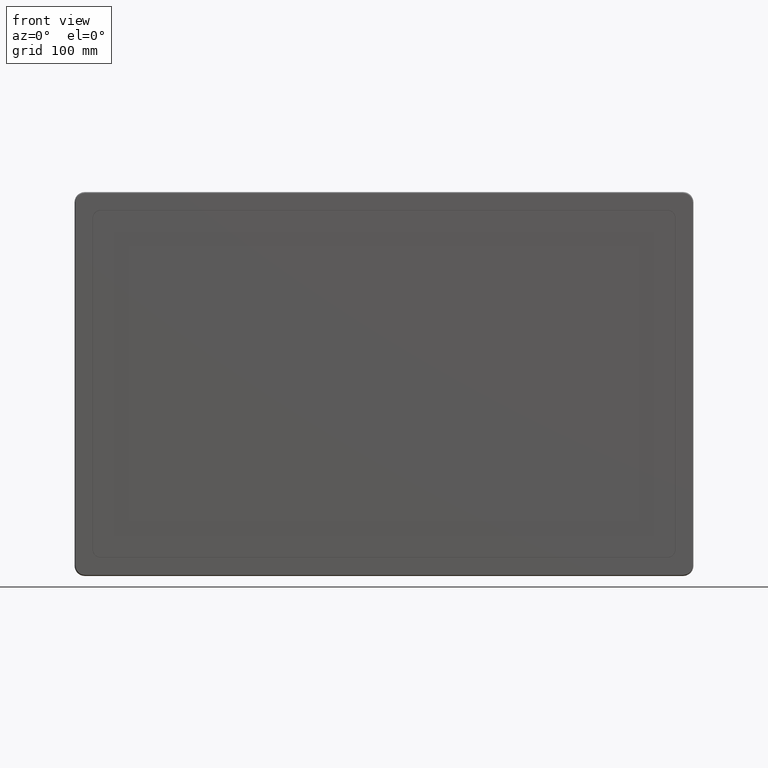
[diagram: clean part render]
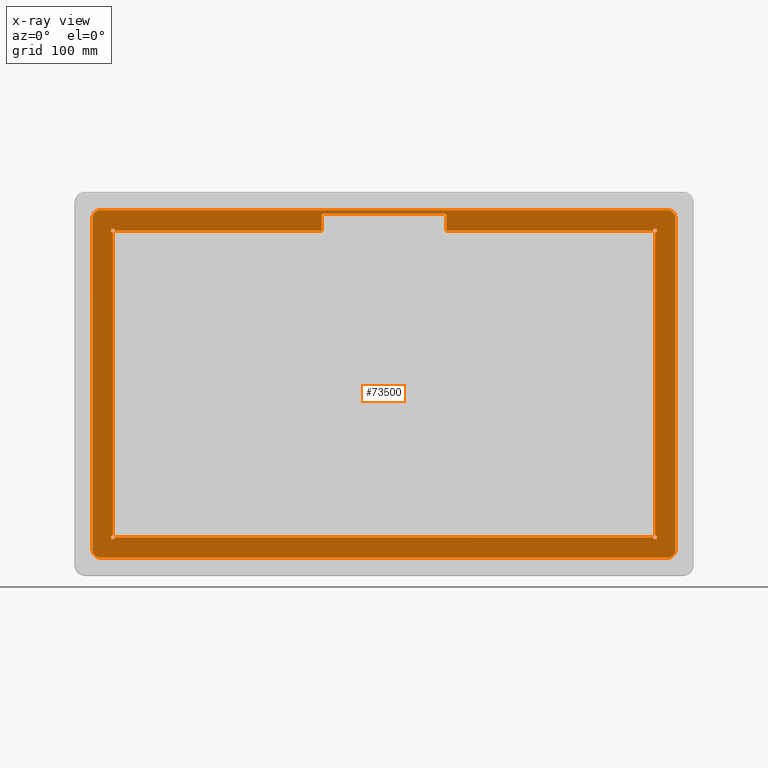
[diagram: x-ray — body ghosted, one internal face saturated and labeled with its STEP entity id]
A machine part, front view, then the same camera in x-ray: the body is ghosted and one INTERNAL B-rep face — a face not visible from any outside direction — is saturated and labeled: STEP entity #73500.
In plain terms, the highlighted planar face has unit normal (0, -1, 0).
Its self-contained STEP definition (entity closure, byte-faithful):
#288 = EDGE_CURVE ( 'NONE', #32959, #58912, #45521, .T. ) ;
#515 = EDGE_CURVE ( 'NONE', #94635, #58185, #73271, .T. ) ;
#707 = CARTESIAN_POINT ( 'NONE',  ( 265.5000000000000568, -2.699999999999994849, -148.2500000000000568 ) ) ;
#1057 = DIRECTION ( 'NONE',  ( -1.000000000000000000, -0.0000000000000000000, -0.0000000000000000000 ) ) ;
#1129 = CARTESIAN_POINT ( 'NONE',  ( -59.00000000000000711, -2.699999999999994849, 166.6599999999999966 ) ) ;
#1281 = VERTEX_POINT ( 'NONE', #71381 ) ;
#2225 = EDGE_CURVE ( 'NONE', #2975, #69309, #80713, .T. ) ;
#2670 = AXIS2_PLACEMENT_3D ( 'NONE', #45728, #3347, #45358 ) ;
#2890 = CARTESIAN_POINT ( 'NONE',  ( 59.00000000000000000, -2.699999749999995036, 166.6600000000000250 ) ) ;
#2975 = VERTEX_POINT ( 'NONE', #90352 ) ;
#3347 = DIRECTION ( 'NONE',  ( 0.0000000000000000000, 1.000000000000000000, -0.0000000000000000000 ) ) ;
#3729 = AXIS2_PLACEMENT_3D ( 'NONE', #79172, #36773, #80245 ) ;
#4504 = PLANE ( 'NONE',  #100039 ) ;
#4945 = DIRECTION ( 'NONE',  ( 3.701697761654537327E-16, -1.000000000000000000, 3.701697761653726279E-16 ) ) ;
#6131 = DIRECTION ( 'NONE',  ( -0.0000000000000000000, -0.0000000000000000000, -1.000000000000000000 ) ) ;
#6664 = VERTEX_POINT ( 'NONE', #31451 ) ;
#6883 = CARTESIAN_POINT ( 'NONE',  ( -61.00000000000000000, -2.699999999999989964, 157.4550000000000125 ) ) ;
#7400 = EDGE_CURVE ( 'NONE', #54453, #6664, #73149, .T. ) ;
#7967 = EDGE_LOOP ( 'NONE', ( #27441, #93674, #8310, #22999, #15719, #8295, #109742, #56193, #92641, #44053, #78701, #61857, #76281, #45853, #30344, #17116 ) ) ;
#8135 = VERTEX_POINT ( 'NONE', #12870 ) ;
#8295 = ORIENTED_EDGE ( 'NONE', *, *, #19496, .T. ) ;
#8310 = ORIENTED_EDGE ( 'NONE', *, *, #61328, .T. ) ;
#8746 = EDGE_CURVE ( 'NONE', #17832, #88655, #88464, .T. ) ;
#9737 = EDGE_LOOP ( 'NONE', ( #22340, #56405, #38667, #74535, #53719, #25241, #15048, #100267 ) ) ;
#10080 = CARTESIAN_POINT ( 'NONE',  ( 59.00000000000000000, -2.699999749999995036, 166.6600000000000250 ) ) ;
#10254 = LINE ( 'NONE', #40392, #97915 ) ;
#11601 = CARTESIAN_POINT ( 'NONE',  ( -285.3999999999999773, -2.700000000000000178, -170.1500000000000057 ) ) ;
#11855 = DIRECTION ( 'NONE',  ( -0.0000000000000000000, -0.0000000000000000000, -1.000000000000000000 ) ) ;
#12419 = AXIS2_PLACEMENT_3D ( 'NONE', #65931, #107079, #65566 ) ;
#12463 = DIRECTION ( 'NONE',  ( 1.000000000000000000, 1.156482317317870246E-16, 0.0000000000000000000 ) ) ;
#12870 = CARTESIAN_POINT ( 'NONE',  ( 265.5000000000000568, -2.699999999999994849, 148.2500000000000568 ) ) ;
#13949 = EDGE_CURVE ( 'NONE', #6664, #27503, #29195, .T. ) ;
#14479 = EDGE_CURVE ( 'NONE', #76124, #29682, #88760, .T. ) ;
#14632 = VERTEX_POINT ( 'NONE', #90220 ) ;
#15048 = ORIENTED_EDGE ( 'NONE', *, *, #515, .T. ) ;
#15229 = CIRCLE ( 'NONE', #3729, 1.999999999999918510 ) ;
#15719 = ORIENTED_EDGE ( 'NONE', *, *, #106064, .T. ) ;
#16199 = CARTESIAN_POINT ( 'NONE',  ( -285.3999999999999773, -2.700000000000000178, 162.6499999999999773 ) ) ;
#17116 = ORIENTED_EDGE ( 'NONE', *, *, #61712, .F. ) ;
#17832 = VERTEX_POINT ( 'NONE', #103031 ) ;
#18695 = DIRECTION ( 'NONE',  ( 1.000000000000000000, 0.0000000000000000000, 0.0000000000000000000 ) ) ;
#19367 = DIRECTION ( 'NONE',  ( 0.0000000000000000000, 0.0000000000000000000, 1.000000000000000000 ) ) ;
#19496 = EDGE_CURVE ( 'NONE', #8135, #100457, #67042, .T. ) ;
#20666 = CARTESIAN_POINT ( 'NONE',  ( -277.8999999999999773, -2.700000000000001066, 162.6499999999999204 ) ) ;
#21443 = CARTESIAN_POINT ( 'NONE',  ( 265.4999999999998863, -2.700000000000000178, 150.2500000000000000 ) ) ;
#22340 = ORIENTED_EDGE ( 'NONE', *, *, #288, .T. ) ;
#22710 = VECTOR ( 'NONE', #98688, 1000.000000000000000 ) ;
#22916 = VECTOR ( 'NONE', #11855, 1000.000000000000000 ) ;
#22999 = ORIENTED_EDGE ( 'NONE', *, *, #8746, .T. ) ;
#23005 = AXIS2_PLACEMENT_3D ( 'NONE', #96816, #79459, #28910 ) ;
#23259 = CARTESIAN_POINT ( 'NONE',  ( 61.00000000000005684, -2.699999999999995293, 150.2499999999999147 ) ) ;
#24751 = CARTESIAN_POINT ( 'NONE',  ( -263.4999997500000291, -2.699999999999994849, 150.2499999999998863 ) ) ;
#24831 = VECTOR ( 'NONE', #78493, 1000.000000000000000 ) ;
#25241 = ORIENTED_EDGE ( 'NONE', *, *, #78426, .T. ) ;
#25824 = CIRCLE ( 'NONE', #64333, 7.500000000000007105 ) ;
#26121 = CARTESIAN_POINT ( 'NONE',  ( 0.0000000000000000000, -2.700000000000000178, 150.2499999999998010 ) ) ;
#26378 = CARTESIAN_POINT ( 'NONE',  ( -61.00000000000000000, -2.699999999999989964, 150.2500000000000000 ) ) ;
#26746 = CARTESIAN_POINT ( 'NONE',  ( -263.4999997500000291, -2.699999999999994849, 150.2499999999998863 ) ) ;
#26768 = CARTESIAN_POINT ( 'NONE',  ( -285.3999999999999773, -2.700000000000000178, -162.6499999999999488 ) ) ;
#27155 = VERTEX_POINT ( 'NONE', #92189 ) ;
#27441 = ORIENTED_EDGE ( 'NONE', *, *, #13949, .F. ) ;
#27503 = VERTEX_POINT ( 'NONE', #10080 ) ;
#28910 = DIRECTION ( 'NONE',  ( 1.000000000000000000, -1.156482317317870246E-16, 0.0000000000000000000 ) ) ;
#29195 = CIRCLE ( 'NONE', #67527, 2.000000000000022649 ) ;
#29682 = VERTEX_POINT ( 'NONE', #45179 ) ;
#30012 = DIRECTION ( 'NONE',  ( 0.0000000000000000000, 0.0000000000000000000, 1.000000000000000000 ) ) ;
#30134 = CARTESIAN_POINT ( 'NONE',  ( -277.8999999999999773, -2.700000000000000178, -170.1500000000000057 ) ) ;
#30344 = ORIENTED_EDGE ( 'NONE', *, *, #14479, .F. ) ;
#31451 = CARTESIAN_POINT ( 'NONE',  ( 61.00000000000000000, -2.699999999999995293, 164.6599999999999966 ) ) ;
#31899 = VERTEX_POINT ( 'NONE', #62864 ) ;
#32940 = VERTEX_POINT ( 'NONE', #24751 ) ;
#32959 = VERTEX_POINT ( 'NONE', #16199 ) ;
#33112 = VECTOR ( 'NONE', #1057, 1000.000000000000000 ) ;
#34014 = DIRECTION ( 'NONE',  ( -0.0000000000000000000, -0.0000000000000000000, 1.000000000000000000 ) ) ;
#36001 = CARTESIAN_POINT ( 'NONE',  ( -285.3999999999999773, -2.700000000000000178, 0.0000000000000000000 ) ) ;
#36773 = DIRECTION ( 'NONE',  ( -0.0000000000000000000, 1.000000000000000000, 0.0000000000000000000 ) ) ;
#37004 = CARTESIAN_POINT ( 'NONE',  ( 277.8999999999999773, -2.700000000000001066, 162.6499999999999204 ) ) ;
#37198 = DIRECTION ( 'NONE',  ( -0.0000000000000000000, 1.000000000000000000, 0.0000000000000000000 ) ) ;
#38667 = ORIENTED_EDGE ( 'NONE', *, *, #95068, .T. ) ;
#39403 = VERTEX_POINT ( 'NONE', #90645 ) ;
#40374 = CIRCLE ( 'NONE', #12419, 1.999999999999918510 ) ;
#40392 = CARTESIAN_POINT ( 'NONE',  ( 0.0000000000000000000, -2.700000000000000178, -170.1500000000000057 ) ) ;
#41299 = EDGE_CURVE ( 'NONE', #58912, #84322, #104818, .T. ) ;
#43560 = CARTESIAN_POINT ( 'NONE',  ( 285.3999999999999773, -2.700000000000000178, 0.0000000000000000000 ) ) ;
#43801 = B_SPLINE_CURVE_WITH_KNOTS ( 'NONE', 1,
 ( #26378, #26746 ),
 .UNSPECIFIED., .F., .F.,
 ( 2, 2 ),
 ( 0.0000000000000000000, 1.000000000000000000 ),
 .UNSPECIFIED. ) ;
#44053 = ORIENTED_EDGE ( 'NONE', *, *, #53711, .T. ) ;
#45179 = CARTESIAN_POINT ( 'NONE',  ( -61.00000000000000000, -2.699999999999994849, 164.6599999999999966 ) ) ;
#45358 = DIRECTION ( 'NONE',  ( 0.0000000000000000000, 0.0000000000000000000, 1.000000000000000000 ) ) ;
#45521 = LINE ( 'NONE', #36001, #22916 ) ;
#45728 = CARTESIAN_POINT ( 'NONE',  ( -265.5000000000000000, -2.700000000000000178, 150.2500000000000284 ) ) ;
#45737 = CARTESIAN_POINT ( 'NONE',  ( -58.99999999999995737, -2.700000000000001066, 164.6599999999999966 ) ) ;
#45853 = ORIENTED_EDGE ( 'NONE', *, *, #78260, .F. ) ;
#46839 = DIRECTION ( 'NONE',  ( -1.000000000000000000, 4.336808689941968432E-16, 0.0000000000000000000 ) ) ;
#47296 = LINE ( 'NONE', #6883, #72572 ) ;
#47898 = CARTESIAN_POINT ( 'NONE',  ( -263.5000000000000000, -2.699999999999995293, -150.2500000000000000 ) ) ;
#48221 = VERTEX_POINT ( 'NONE', #75277 ) ;
#48777 = EDGE_CURVE ( 'NONE', #100457, #48221, #15229, .T. ) ;
#50675 = DIRECTION ( 'NONE',  ( 0.0000000000000000000, 0.0000000000000000000, 1.000000000000000000 ) ) ;
#51109 = DIRECTION ( 'NONE',  ( 1.000000000000000000, 1.156482317317870246E-16, 0.0000000000000000000 ) ) ;
#52203 = DIRECTION ( 'NONE',  ( 9.871194031078177600E-17, -1.000000000000000000, -9.871194031078053108E-17 ) ) ;
#53280 = AXIS2_PLACEMENT_3D ( 'NONE', #21443, #62353, #30012 ) ;
#53711 = EDGE_CURVE ( 'NONE', #31899, #27155, #105562, .T. ) ;
#53719 = ORIENTED_EDGE ( 'NONE', *, *, #2225, .T. ) ;
#54155 = CARTESIAN_POINT ( 'NONE',  ( -59.00000000000000711, -2.699999999999994849, 166.6599999999999966 ) ) ;
#54453 = VERTEX_POINT ( 'NONE', #23259 ) ;
#54832 = LINE ( 'NONE', #26121, #64126 ) ;
#55701 = LINE ( 'NONE', #108034, #33112 ) ;
#56193 = ORIENTED_EDGE ( 'NONE', *, *, #81437, .T. ) ;
#56405 = ORIENTED_EDGE ( 'NONE', *, *, #41299, .T. ) ;
#56529 = CARTESIAN_POINT ( 'NONE',  ( -265.4999999999999432, -2.700000000000000622, 0.0000000000000000000 ) ) ;
#57567 = EDGE_CURVE ( 'NONE', #39403, #32940, #43801, .T. ) ;
#58185 = VERTEX_POINT ( 'NONE', #81598 ) ;
#58912 = VERTEX_POINT ( 'NONE', #26768 ) ;
#58913 = B_SPLINE_CURVE_WITH_KNOTS ( 'NONE', 1,
 ( #2890, #54155 ),
 .UNSPECIFIED., .F., .F.,
 ( 2, 2 ),
 ( 0.0000000000000000000, 1.000000000000000000 ),
 .UNSPECIFIED. ) ;
#61328 = EDGE_CURVE ( 'NONE', #54453, #17832, #54832, .T. ) ;
#61712 = EDGE_CURVE ( 'NONE', #27503, #76124, #58913, .T. ) ;
#61857 = ORIENTED_EDGE ( 'NONE', *, *, #94487, .T. ) ;
#62353 = DIRECTION ( 'NONE',  ( -0.0000000000000000000, 1.000000000000000000, 0.0000000000000000000 ) ) ;
#62864 = CARTESIAN_POINT ( 'NONE',  ( -265.4999999999999432, -2.699999999999995293, -148.2500000000000568 ) ) ;
#63021 = DIRECTION ( 'NONE',  ( -9.871194031078177600E-17, -1.000000000000000000, 9.871194031078053108E-17 ) ) ;
#63774 = AXIS2_PLACEMENT_3D ( 'NONE', #93322, #75989, #50675 ) ;
#64126 = VECTOR ( 'NONE', #18695, 1000.000000000000000 ) ;
#64333 = AXIS2_PLACEMENT_3D ( 'NONE', #37004, #79750, #12463 ) ;
#64976 = CARTESIAN_POINT ( 'NONE',  ( 0.0000000000000000000, -2.700000000000000178, 170.1500000000000057 ) ) ;
#65348 = EDGE_CURVE ( 'NONE', #58185, #32959, #74594, .T. ) ;
#65566 = DIRECTION ( 'NONE',  ( 0.0000000000000000000, 0.0000000000000000000, 1.000000000000000000 ) ) ;
#65931 = CARTESIAN_POINT ( 'NONE',  ( -265.5000000000000000, -2.700000000000000178, 150.2500000000000284 ) ) ;
#66702 = EDGE_CURVE ( 'NONE', #90170, #31899, #96575, .T. ) ;
#67042 = LINE ( 'NONE', #106026, #93619 ) ;
#67120 = DIRECTION ( 'NONE',  ( 1.000000000000000000, 0.0000000000000000000, 0.0000000000000000000 ) ) ;
#67209 = FACE_BOUND ( 'NONE', #7967, .T. ) ;
#67527 = AXIS2_PLACEMENT_3D ( 'NONE', #107410, #4945, #72991 ) ;
#67815 = VECTOR ( 'NONE', #34014, 1000.000000000000000 ) ;
#69309 = VERTEX_POINT ( 'NONE', #86661 ) ;
#71381 = CARTESIAN_POINT ( 'NONE',  ( -265.5000000000000000, -2.700000000000000178, 152.2499999999999432 ) ) ;
#71887 = CARTESIAN_POINT ( 'NONE',  ( 265.4999999999998863, -2.700000000000000178, 152.2499999999998863 ) ) ;
#72341 = DIRECTION ( 'NONE',  ( 1.000000000000000000, -1.156482317317870246E-16, 0.0000000000000000000 ) ) ;
#72572 = VECTOR ( 'NONE', #74554, 1000.000000000000000 ) ;
#72991 = DIRECTION ( 'NONE',  ( -1.000000000000000000, -4.336808689941968432E-16, 0.0000000000000000000 ) ) ;
#73149 = LINE ( 'NONE', #92652, #67815 ) ;
#73217 = CARTESIAN_POINT ( 'NONE',  ( 277.8999999999998067, -2.700000000000000178, 170.1499999999999773 ) ) ;
#73271 = LINE ( 'NONE', #64976, #22710 ) ;
#73500 = ADVANCED_FACE ( 'NONE', ( #67209, #81812 ), #4504, .T. ) ;
#74535 = ORIENTED_EDGE ( 'NONE', *, *, #95210, .T. ) ;
#74554 = DIRECTION ( 'NONE',  ( -0.0000000000000000000, -0.0000000000000000000, -1.000000000000000000 ) ) ;
#74594 = CIRCLE ( 'NONE', #107014, 7.500000000000007105 ) ;
#74869 = AXIS2_PLACEMENT_3D ( 'NONE', #104701, #37198, #19367 ) ;
#75277 = CARTESIAN_POINT ( 'NONE',  ( 263.5000000000000568, -2.699999999999994849, -150.2500000000000000 ) ) ;
#75989 = DIRECTION ( 'NONE',  ( 0.0000000000000000000, 1.000000000000000000, 0.0000000000000000000 ) ) ;
#76124 = VERTEX_POINT ( 'NONE', #1129 ) ;
#76281 = ORIENTED_EDGE ( 'NONE', *, *, #57567, .F. ) ;
#76794 = CARTESIAN_POINT ( 'NONE',  ( 277.8999999999999773, -2.700000000000001066, -162.6499999999999204 ) ) ;
#78260 = EDGE_CURVE ( 'NONE', #29682, #39403, #47296, .T. ) ;
#78426 = EDGE_CURVE ( 'NONE', #69309, #94635, #25824, .T. ) ;
#78493 = DIRECTION ( 'NONE',  ( 0.0000000000000000000, 0.0000000000000000000, 1.000000000000000000 ) ) ;
#78701 = ORIENTED_EDGE ( 'NONE', *, *, #97067, .T. ) ;
#79172 = CARTESIAN_POINT ( 'NONE',  ( 265.5000000000000000, -2.700000000000000178, -150.2500000000000284 ) ) ;
#79459 = DIRECTION ( 'NONE',  ( -9.871194031078177600E-17, -1.000000000000000000, -9.871194031078053108E-17 ) ) ;
#79750 = DIRECTION ( 'NONE',  ( 9.871194031078177600E-17, -1.000000000000000000, 9.871194031078053108E-17 ) ) ;
#80245 = DIRECTION ( 'NONE',  ( 0.0000000000000000000, 0.0000000000000000000, 1.000000000000000000 ) ) ;
#80534 = VECTOR ( 'NONE', #107354, 1000.000000000000000 ) ;
#80698 = DIRECTION ( 'NONE',  ( 0.0000000000000000000, -1.000000000000000000, 0.0000000000000000000 ) ) ;
#80713 = LINE ( 'NONE', #43560, #24831 ) ;
#81053 = DIRECTION ( 'NONE',  ( 1.000000000000000000, 0.0000000000000000000, 0.0000000000000000000 ) ) ;
#81437 = EDGE_CURVE ( 'NONE', #48221, #90170, #55701, .T. ) ;
#81598 = CARTESIAN_POINT ( 'NONE',  ( -277.8999999999999773, -2.700000000000000178, 170.1500000000000057 ) ) ;
#81812 = FACE_OUTER_BOUND ( 'NONE', #9737, .T. ) ;
#84322 = VERTEX_POINT ( 'NONE', #30134 ) ;
#86661 = CARTESIAN_POINT ( 'NONE',  ( 285.3999999999999773, -2.700000000000000178, 162.6499999999999488 ) ) ;
#87196 = CIRCLE ( 'NONE', #2670, 1.999999999999918510 ) ;
#88464 = CIRCLE ( 'NONE', #74869, 1.999999999999890754 ) ;
#88655 = VERTEX_POINT ( 'NONE', #71887 ) ;
#88760 = CIRCLE ( 'NONE', #93123, 2.000000000000022649 ) ;
#90170 = VERTEX_POINT ( 'NONE', #47898 ) ;
#90220 = CARTESIAN_POINT ( 'NONE',  ( 277.8999999999999773, -2.700000000000000178, -170.1500000000000057 ) ) ;
#90352 = CARTESIAN_POINT ( 'NONE',  ( 285.3999999999999773, -2.700000000000000178, -162.6499999999999488 ) ) ;
#90645 = CARTESIAN_POINT ( 'NONE',  ( -61.00000000000000000, -2.699999999999989964, 150.2500000000000000 ) ) ;
#92189 = CARTESIAN_POINT ( 'NONE',  ( -265.4999999999999432, -2.699999999999994849, 148.2500000000000568 ) ) ;
#92641 = ORIENTED_EDGE ( 'NONE', *, *, #66702, .T. ) ;
#92652 = CARTESIAN_POINT ( 'NONE',  ( 61.00000000000000000, -2.699999999999989964, 157.4550000000000125 ) ) ;
#93123 = AXIS2_PLACEMENT_3D ( 'NONE', #45737, #97655, #46839 ) ;
#93322 = CARTESIAN_POINT ( 'NONE',  ( -265.4999999999998863, -2.700000000000000622, -150.2500000000000000 ) ) ;
#93619 = VECTOR ( 'NONE', #6131, 1000.000000000000000 ) ;
#93674 = ORIENTED_EDGE ( 'NONE', *, *, #7400, .F. ) ;
#93751 = AXIS2_PLACEMENT_3D ( 'NONE', #76794, #52203, #51109 ) ;
#94487 = EDGE_CURVE ( 'NONE', #1281, #32940, #87196, .T. ) ;
#94635 = VERTEX_POINT ( 'NONE', #73217 ) ;
#95068 = EDGE_CURVE ( 'NONE', #84322, #14632, #10254, .T. ) ;
#95210 = EDGE_CURVE ( 'NONE', #14632, #2975, #105785, .T. ) ;
#96575 = CIRCLE ( 'NONE', #63774, 1.999999999999890754 ) ;
#96816 = CARTESIAN_POINT ( 'NONE',  ( -277.8999999999999773, -2.700000000000001066, -162.6499999999999204 ) ) ;
#97067 = EDGE_CURVE ( 'NONE', #27155, #1281, #40374, .T. ) ;
#97188 = CIRCLE ( 'NONE', #53280, 1.999999999999890754 ) ;
#97655 = DIRECTION ( 'NONE',  ( -3.701697761654537327E-16, -1.000000000000000000, 3.701697761653726279E-16 ) ) ;
#97915 = VECTOR ( 'NONE', #67120, 1000.000000000000000 ) ;
#98688 = DIRECTION ( 'NONE',  ( -1.000000000000000000, -0.0000000000000000000, -0.0000000000000000000 ) ) ;
#100039 = AXIS2_PLACEMENT_3D ( 'NONE', #11601, #80698, #81053 ) ;
#100267 = ORIENTED_EDGE ( 'NONE', *, *, #65348, .T. ) ;
#100457 = VERTEX_POINT ( 'NONE', #707 ) ;
#103031 = CARTESIAN_POINT ( 'NONE',  ( 263.5000000000000000, -2.699999999999994849, 150.2499999999998863 ) ) ;
#104701 = CARTESIAN_POINT ( 'NONE',  ( 265.4999999999998863, -2.700000000000000178, 150.2500000000000000 ) ) ;
#104818 = CIRCLE ( 'NONE', #23005, 7.500000000000007105 ) ;
#105562 = LINE ( 'NONE', #56529, #80534 ) ;
#105785 = CIRCLE ( 'NONE', #93751, 7.500000000000007105 ) ;
#106026 = CARTESIAN_POINT ( 'NONE',  ( 265.5000000000000568, -2.700000000000000178, 0.0000000000000000000 ) ) ;
#106064 = EDGE_CURVE ( 'NONE', #88655, #8135, #97188, .T. ) ;
#107014 = AXIS2_PLACEMENT_3D ( 'NONE', #20666, #63021, #72341 ) ;
#107079 = DIRECTION ( 'NONE',  ( 0.0000000000000000000, 1.000000000000000000, -0.0000000000000000000 ) ) ;
#107354 = DIRECTION ( 'NONE',  ( 0.0000000000000000000, 0.0000000000000000000, 1.000000000000000000 ) ) ;
#107410 = CARTESIAN_POINT ( 'NONE',  ( 58.99999999999995737, -2.700000000000001066, 164.6599999999999966 ) ) ;
#108034 = CARTESIAN_POINT ( 'NONE',  ( 0.0000000000000000000, -2.700000000000000178, -150.2499999999999716 ) ) ;
#109742 = ORIENTED_EDGE ( 'NONE', *, *, #48777, .T. ) ;